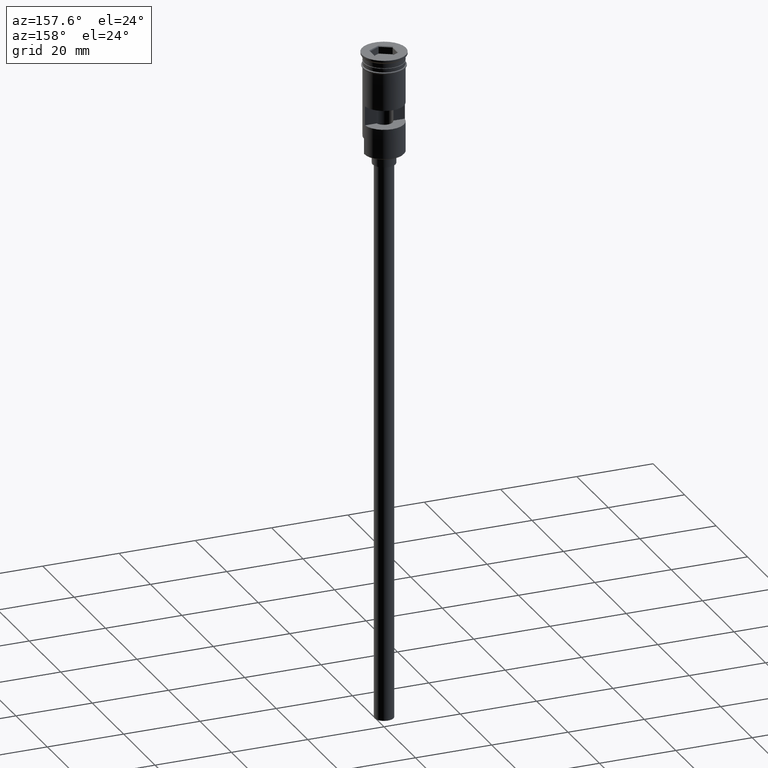
[diagram: clean part render]
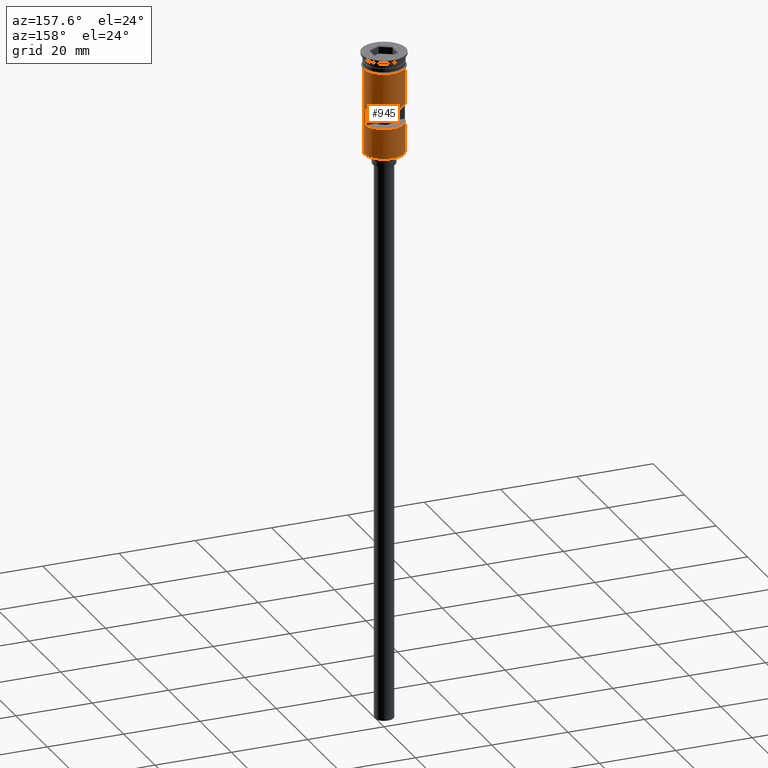
[diagram: same view with one face highlighted and labeled with its STEP entity id]
A machine part, auxiliary view. The second image highlights one B-rep face of the part: STEP entity #945.
In plain terms, the highlighted cylindrical surface (edge-blend (fillet) strip) has radius 5.25 mm, axis along (-0, -0, 1).
Its self-contained STEP definition (entity closure, byte-faithful):
#15 = EDGE_CURVE ( 'NONE', #876, #655, #663, .T. ) ;
#19 = DIRECTION ( 'NONE',  ( -0.000000000000000000, -0.000000000000000000, 1.000000000000000000 ) ) ;
#36 = ORIENTED_EDGE ( 'NONE', *, *, #138, .F. ) ;
#42 = VERTEX_POINT ( 'NONE', #837 ) ;
#107 = CARTESIAN_POINT ( 'NONE',  ( 0.000000000000000000, 0.000000000000000000, -18.50000000000000355 ) ) ;
#108 = EDGE_CURVE ( 'NONE', #763, #42, #526, .T. ) ;
#138 = EDGE_CURVE ( 'NONE', #894, #1018, #683, .T. ) ;
#147 = DIRECTION ( 'NONE',  ( -0.000000000000000000, -0.000000000000000000, 1.000000000000000000 ) ) ;
#153 = VERTEX_POINT ( 'NONE', #875 ) ;
#160 = CARTESIAN_POINT ( 'NONE',  ( 5.249999999999996447, 0.000000000000000000, 0.000000000000000000 ) ) ;
#218 = EDGE_LOOP ( 'NONE', ( #36, #293, #1132, #631 ) ) ;
#225 = CARTESIAN_POINT ( 'NONE',  ( 0.000000000000000000, 0.000000000000000000, -3.799999999999998934 ) ) ;
#235 = DIRECTION ( 'NONE',  ( -1.000000000000000000, 0.000000000000000000, 0.000000000000000000 ) ) ;
#271 = CARTESIAN_POINT ( 'NONE',  ( -5.249999999999994671, 0.000000000000000000, -26.50000000000000000 ) ) ;
#293 = ORIENTED_EDGE ( 'NONE', *, *, #1572, .F. ) ;
#294 = CARTESIAN_POINT ( 'NONE',  ( 0.000000000000000000, 0.000000000000000000, -13.49999999999999822 ) ) ;
#307 = VECTOR ( 'NONE', #444, 1000.000000000000000 ) ;
#320 = ORIENTED_EDGE ( 'NONE', *, *, #650, .F. ) ;
#330 = FACE_OUTER_BOUND ( 'NONE', #638, .T. ) ;
#341 = ORIENTED_EDGE ( 'NONE', *, *, #108, .T. ) ;
#351 = DIRECTION ( 'NONE',  ( 0.000000000000000000, 0.000000000000000000, 1.000000000000000000 ) ) ;
#359 = CARTESIAN_POINT ( 'NONE',  ( 5.215601595214110375, 0.5999999999999998668, 0.000000000000000000 ) ) ;
#389 = AXIS2_PLACEMENT_3D ( 'NONE', #107, #351, #235 ) ;
#418 = CARTESIAN_POINT ( 'NONE',  ( 5.249999999999994671, 6.429395695523597250E-16, -26.50000000000000000 ) ) ;
#420 = CARTESIAN_POINT ( 'NONE',  ( 5.249999999999994671, 6.429395695523597250E-16, -26.30000000000000071 ) ) ;
#444 = DIRECTION ( 'NONE',  ( -0.000000000000000000, -0.000000000000000000, 1.000000000000000000 ) ) ;
#465 = CARTESIAN_POINT ( 'NONE',  ( 5.215601595214109487, 0.5999999999999998668, -18.50000000000000355 ) ) ;
#498 = ORIENTED_EDGE ( 'NONE', *, *, #1437, .T. ) ;
#522 = EDGE_CURVE ( 'NONE', #153, #535, #573, .T. ) ;
#526 = LINE ( 'NONE', #630, #1317 ) ;
#532 = DIRECTION ( 'NONE',  ( 0.000000000000000000, -1.000000000000000000, 3.304235192336777484E-16 ) ) ;
#535 = VERTEX_POINT ( 'NONE', #1307 ) ;
#546 = VECTOR ( 'NONE', #19, 1000.000000000000000 ) ;
#547 = DIRECTION ( 'NONE',  ( -0.000000000000000000, -3.730588120380232914E-16, -1.000000000000000000 ) ) ;
#559 = DIRECTION ( 'NONE',  ( -0.000000000000000000, -0.000000000000000000, 1.000000000000000000 ) ) ;
#566 = ORIENTED_EDGE ( 'NONE', *, *, #1270, .F. ) ;
#569 = CARTESIAN_POINT ( 'NONE',  ( 5.215601595214109487, 0.5999999999999998668, -13.49999999999999822 ) ) ;
#573 = LINE ( 'NONE', #1438, #307 ) ;
#605 = EDGE_CURVE ( 'NONE', #1018, #153, #1170, .T. ) ;
#630 = CARTESIAN_POINT ( 'NONE',  ( -5.249999999999996447, 6.429395695523600208E-16, 0.000000000000000000 ) ) ;
#631 = ORIENTED_EDGE ( 'NONE', *, *, #605, .F. ) ;
#638 = EDGE_LOOP ( 'NONE', ( #1137, #341, #320, #916, #566, #498 ) ) ;
#646 = AXIS2_PLACEMENT_3D ( 'NONE', #759, #1002, #1238 ) ;
#649 = DIRECTION ( 'NONE',  ( -0.000000000000000000, -0.000000000000000000, 1.000000000000000000 ) ) ;
#650 = EDGE_CURVE ( 'NONE', #655, #42, #951, .T. ) ;
#655 = VERTEX_POINT ( 'NONE', #1243 ) ;
#659 = CARTESIAN_POINT ( 'NONE',  ( 5.249999999999996447, 6.429395695523600208E-16, -22.29999999999998295 ) ) ;
#663 = LINE ( 'NONE', #160, #1169 ) ;
#671 = VECTOR ( 'NONE', #559, 1000.000000000000000 ) ;
#683 = LINE ( 'NONE', #359, #1586 ) ;
#708 = FACE_BOUND ( 'NONE', #218, .T. ) ;
#729 = CIRCLE ( 'NONE', #1376, 5.249999999999996447 ) ;
#752 = CIRCLE ( 'NONE', #646, 5.249999999999996447 ) ;
#759 = CARTESIAN_POINT ( 'NONE',  ( 0.000000000000000000, 0.000000000000000000, -26.30000000000000071 ) ) ;
#763 = VERTEX_POINT ( 'NONE', #795 ) ;
#770 = DIRECTION ( 'NONE',  ( 0.000000000000000000, 0.000000000000000000, -1.000000000000000000 ) ) ;
#795 = CARTESIAN_POINT ( 'NONE',  ( -5.249999999999994671, 0.000000000000000000, -22.29999999999998295 ) ) ;
#820 = CARTESIAN_POINT ( 'NONE',  ( 0.000000000000000000, 0.000000000000000000, 0.000000000000000000 ) ) ;
#837 = CARTESIAN_POINT ( 'NONE',  ( -5.249999999999999112, 6.429395695523603167E-16, -3.799999999999998934 ) ) ;
#875 = CARTESIAN_POINT ( 'NONE',  ( -5.215601595214110375, 0.5999999999999998668, -18.50000000000000355 ) ) ;
#876 = VERTEX_POINT ( 'NONE', #659 ) ;
#881 = VERTEX_POINT ( 'NONE', #420 ) ;
#894 = VERTEX_POINT ( 'NONE', #569 ) ;
#916 = ORIENTED_EDGE ( 'NONE', *, *, #15, .F. ) ;
#945 = ADVANCED_FACE ( 'NONE', ( #708, #330 ), #1076, .T. ) ;
#951 = CIRCLE ( 'NONE', #986, 5.249999999999999112 ) ;
#986 = AXIS2_PLACEMENT_3D ( 'NONE', #225, #1605, #1360 ) ;
#1002 = DIRECTION ( 'NONE',  ( 0.000000000000000000, 0.000000000000000000, 1.000000000000000000 ) ) ;
#1018 = VERTEX_POINT ( 'NONE', #465 ) ;
#1035 = AXIS2_PLACEMENT_3D ( 'NONE', #820, #1470, #1217 ) ;
#1044 = VERTEX_POINT ( 'NONE', #1148 ) ;
#1076 = CYLINDRICAL_SURFACE ( 'NONE', #1035, 5.249999999999996447 ) ;
#1126 = LINE ( 'NONE', #271, #546 ) ;
#1132 = ORIENTED_EDGE ( 'NONE', *, *, #522, .F. ) ;
#1137 = ORIENTED_EDGE ( 'NONE', *, *, #1551, .T. ) ;
#1148 = CARTESIAN_POINT ( 'NONE',  ( -5.249999999999994671, 0.000000000000000000, -26.30000000000000071 ) ) ;
#1169 = VECTOR ( 'NONE', #649, 1000.000000000000000 ) ;
#1170 = CIRCLE ( 'NONE', #389, 5.249999999999996447 ) ;
#1217 = DIRECTION ( 'NONE',  ( 1.000000000000000000, 0.000000000000000000, 0.000000000000000000 ) ) ;
#1238 = DIRECTION ( 'NONE',  ( -1.000000000000000000, 0.000000000000000000, 0.000000000000000000 ) ) ;
#1243 = CARTESIAN_POINT ( 'NONE',  ( 5.249999999999999112, 0.000000000000000000, -3.799999999999998934 ) ) ;
#1270 = EDGE_CURVE ( 'NONE', #881, #876, #1538, .T. ) ;
#1307 = CARTESIAN_POINT ( 'NONE',  ( -5.215601595214110375, 0.5999999999999998668, -13.49999999999999822 ) ) ;
#1317 = VECTOR ( 'NONE', #147, 1000.000000000000000 ) ;
#1360 = DIRECTION ( 'NONE',  ( 1.000000000000000000, 0.000000000000000000, 0.000000000000000000 ) ) ;
#1376 = AXIS2_PLACEMENT_3D ( 'NONE', #294, #547, #532 ) ;
#1437 = EDGE_CURVE ( 'NONE', #881, #1044, #752, .T. ) ;
#1438 = CARTESIAN_POINT ( 'NONE',  ( -5.215601595214110375, 0.5999999999999998668, 0.000000000000000000 ) ) ;
#1470 = DIRECTION ( 'NONE',  ( -0.000000000000000000, -0.000000000000000000, 1.000000000000000000 ) ) ;
#1538 = LINE ( 'NONE', #418, #671 ) ;
#1551 = EDGE_CURVE ( 'NONE', #1044, #763, #1126, .T. ) ;
#1572 = EDGE_CURVE ( 'NONE', #535, #894, #729, .T. ) ;
#1586 = VECTOR ( 'NONE', #770, 1000.000000000000000 ) ;
#1605 = DIRECTION ( 'NONE',  ( -0.000000000000000000, -0.000000000000000000, 1.000000000000000000 ) ) ;